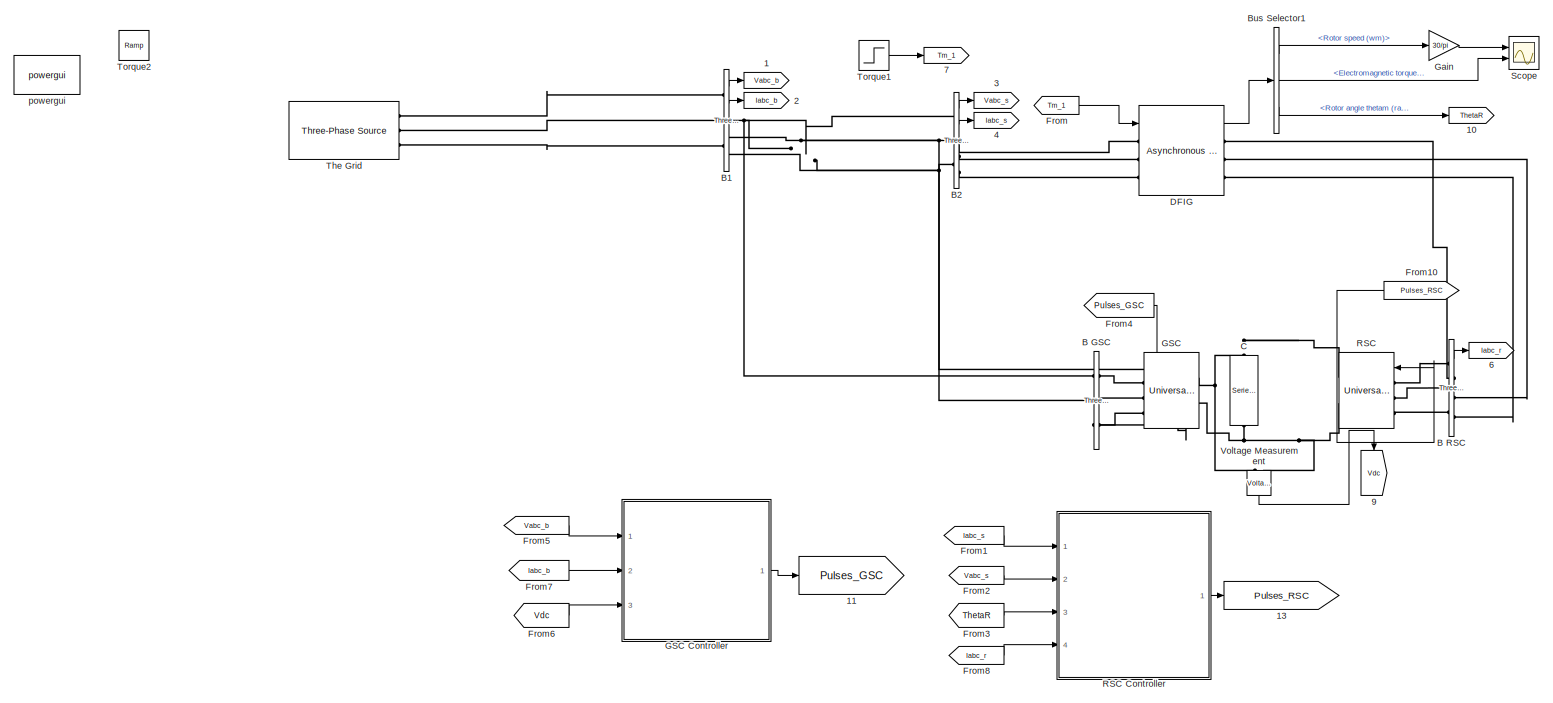
[diagram: root canvas - part 1/1, most of the canvas]
MODEL slx_e61ee6f3aca2
KIND model
BLOCK [Goto]  1
  GotoTag = Vabc_b
BLOCK [Goto]  10
  GotoTag = ThetaR
BLOCK [Goto]  11
  GotoTag = Pulses_GSC
BLOCK [Goto]  13
  GotoTag = Pulses_RSC
BLOCK [Goto]  2
  GotoTag = Iabc_b
BLOCK [Goto]  3
  GotoTag = Vabc_s
BLOCK [Goto]  4
  GotoTag = Iabc_s
BLOCK [Goto]  6
  GotoTag = Iabc_r
BLOCK [Goto]  7
  GotoTag = Tm_1
BLOCK [Goto]  9
  GotoTag = Vdc
BLOCK [Reference] B GSC  REF=powerlib/Measurements/Three-Phase
V-I Measurement
  CurrentMeasurement = no
  Ipu = off
  LabelI = Iabc
  LabelV = Vabc
  OutputType = Complex
  PSBequivalent = 0
  Pbase = 100e6
  PhasorSimulation = off
  Ports = [0, 0, 0, 0, 0, 3, 3]
  SetLabelI = off
  SetLabelV = off
  SourceBlock = powerlib/Measurements/Three-Phase\nV-I Measurement
  SourceType = Three-Phase VI Measurement
  Vbase = 500e3
  VoltageMeasurement = no
  Vpu = off
  VpuLL = off
BLOCK [Reference] B RSC  REF=powerlib/Measurements/Three-Phase
V-I Measurement
  CurrentMeasurement = yes
  Ipu = off
  LabelI = Iabc
  LabelV = Vabc
  OutputType = Complex
  PSBequivalent = 0
  Pbase = 100e6
  PhasorSimulation = off
  Ports = [0, 1, 0, 0, 0, 3, 3]
  SetLabelI = off
  SetLabelV = off
  SourceBlock = powerlib/Measurements/Three-Phase\nV-I Measurement
  SourceType = Three-Phase VI Measurement
  Vbase = 500e3
  VoltageMeasurement = no
  Vpu = off
  VpuLL = off
BLOCK [Reference] B1  REF=powerlib/Measurements/Three-Phase
V-I Measurement
  CurrentMeasurement = yes
  Ipu = off
  LabelI = Iabc
  LabelV = Vabc
  OutputType = Complex
  PSBequivalent = 0
  Pbase = 100e6
  PhasorSimulation = off
  Ports = [0, 2, 0, 0, 0, 3, 3]
  SetLabelI = off
  SetLabelV = off
  SourceBlock = powerlib/Measurements/Three-Phase\nV-I Measurement
  SourceType = Three-Phase VI Measurement
  Vbase = 500e3
  VoltageMeasurement = phase-to-ground
  Vpu = off
  VpuLL = off
BLOCK [Reference] B2  REF=powerlib/Measurements/Three-Phase
V-I Measurement
  CurrentMeasurement = yes
  Ipu = off
  LabelI = Iabc
  LabelV = Vabc
  OutputType = Complex
  PSBequivalent = 0
  Pbase = 100e6
  PhasorSimulation = off
  Ports = [0, 2, 0, 0, 0, 3, 3]
  SetLabelI = off
  SetLabelV = off
  SourceBlock = powerlib/Measurements/Three-Phase\nV-I Measurement
  SourceType = Three-Phase VI Measurement
  Vbase = 500e3
  VoltageMeasurement = phase-to-ground
  Vpu = off
  VpuLL = off
BLOCK [BusSelector] Bus Selector1
  OutputSignals = Mechanical.Rotor speed (wm),Mechanical.Electromagnetic torque Te (N*m),Mechanical.Rotor angle thetam (rad)
  Ports = [1, 3]
BLOCK [Reference] C  REF=powerlib/Elements/Series RLC Branch
  BranchType = C
  Capacitance = 0.0024
  Inductance = 1e-3
  InitialCurrent = 0
  InitialVoltage = 0
  LConnTagsString = __new0
  Measurements = None
  Ports = [0, 0, 0, 0, 0, 1, 1]
  RConnTagsString = __new0
  Resistance = 1
  SetiL0 = off
  Setx0 = off
  SourceBlock = powerlib/Elements/Series RLC Branch
  SourceType = Series RLC Branch
BLOCK [Reference] DFIG  REF=powerlib/Machines/Asynchronous Machine
SI Units
  AttributesFormatString = \n
  Cage1 = [ 0.022 0.226/377]
  Cage2 = [ 0.022 0.226/377]
  InitialConditions = [1 0 0 0 0 0 0 0]
  IterativeModel = Trapezoidal non iterative
  Lm = 0.02135
  LoadFlowParameters = 1492000
  MeasurementBus = off
  Mechanical = [0.03 0.02187 3]
  MechanicalLoad = Torque Tm
  NominalParameters = [7.5e3 415 50]
  Pmec = 0
  PolePairs = 2
  Ports = [1, 1, 0, 0, 0, 3, 3]
  PresetModel = No
  ReferenceFrame = Rotor
  Rotor = [0.80 0.0810]
  RotorType = Wound
  Saturation = [14.03593122, 27.81365428, 53.79336849, 72.68890987, 97.98006896, 148.6815601, 215.7428561, 302.9841135, 420.4778367 ; 230, 322, 414, 460, 506, 552, 598, 644, 690]
  ShowDetailedParameters = on
  SimulateSaturation = off
  SourceBlock = powerlib/Machines/Asynchronous Machine\nSI Units
  SourceType = Asynchronous Machine
  Stator = [1.06 0.2065]
  TsBlock = -1
  TsPowergui = 0
  Units = SI
BLOCK [From] From
  GotoTag = Tm_1
BLOCK [From] From1
  GotoTag = Iabc_s
BLOCK [From] From10
  GotoTag = Pulses_RSC
BLOCK [From] From2
  GotoTag = Vabc_s
BLOCK [From] From3
  GotoTag = ThetaR
BLOCK [From] From4
  GotoTag = Pulses_GSC
BLOCK [From] From5
  GotoTag = Vabc_b
BLOCK [From] From6
  GotoTag = Vdc
BLOCK [From] From7
  GotoTag = Iabc_b
BLOCK [From] From8
  GotoTag = Iabc_r
BLOCK [Reference] GSC  REF=powerlib/Power
Electronics/Universal Bridge
  Arms = 3
  Device = IGBT / Diodes
  ForwardVoltage = 0
  ForwardVoltages = [  0  0  ]
  GTOparameters = [ 10e-6 , 20e-6 ]
  IGBTparameters = [ 1e-6 , 2e-6 ]
  Lon = 0
  Measurements = None
  Measurements_2 = None
  Ports = [1, 0, 0, 0, 0, 3, 2]
  Ron = 1e-3
  SnubberCapacitance = inf
  SnubberResistance = 1e5
  SourceBlock = powerlib/Power\nElectronics/Universal Bridge
  SourceType = Universal Bridge
  converterType = Rectifier
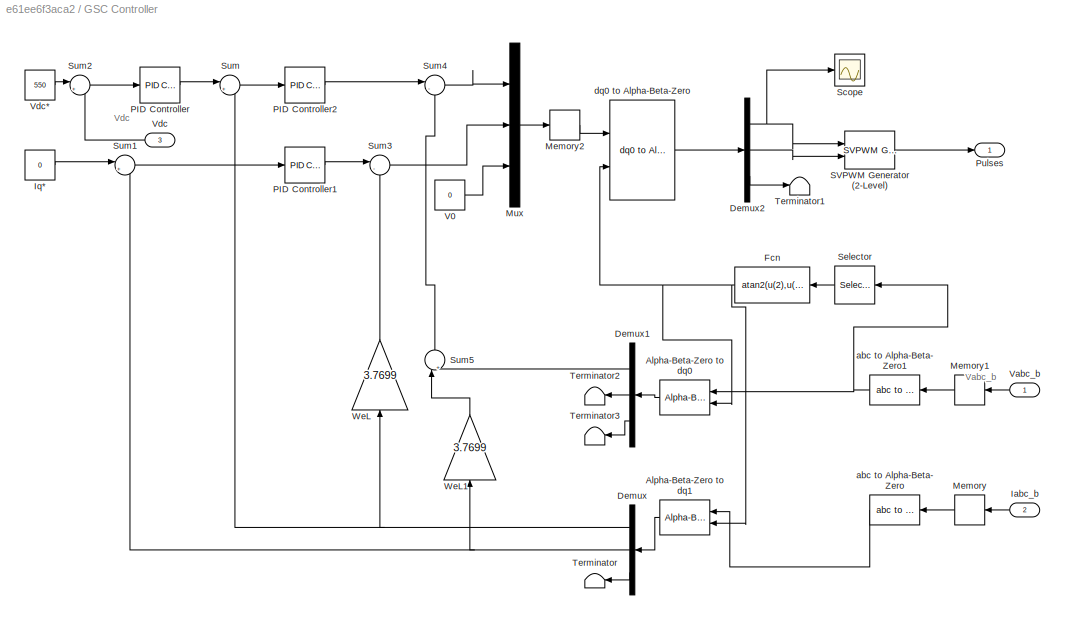
BLOCK [SubSystem] GSC Controller
  Ports = [3, 1]
  RequestExecContextInheritance = off
BLOCK [Reference] GSC Controller/Alpha-Beta-Zero to dq0  REF=powerlib_meascontrol/Transformations/Alpha-Beta-Zero
to dq0
  Alignment = Aligned with phase A axis
  Ports = [2, 1]
  SourceBlock = powerlib_meascontrol/Transformations/Alpha-Beta-Zero\nto dq0
  SourceType = Alpha-Beta-Zero to dq0 Transformation
BLOCK [Reference] GSC Controller/Alpha-Beta-Zero to dq1  REF=powerlib_meascontrol/Transformations/Alpha-Beta-Zero
to dq0
  Alignment = Aligned with phase A axis
  Ports = [2, 1]
  SourceBlock = powerlib_meascontrol/Transformations/Alpha-Beta-Zero\nto dq0
  SourceType = Alpha-Beta-Zero to dq0 Transformation
BLOCK [Demux] GSC Controller/Demux
  DisplayOption = bar
  Outputs = 3
  Ports = [1, 3]
BLOCK [Demux] GSC Controller/Demux1
  DisplayOption = bar
  Outputs = 3
  Ports = [1, 3]
BLOCK [Demux] GSC Controller/Demux2
  DisplayOption = bar
  Outputs = 3
  Ports = [1, 3]
BLOCK [Fcn] GSC Controller/Fcn
  Expr = atan2(u(2),u(1))
BLOCK [Inport] GSC Controller/Iabc_b
  IconDisplay = Port number
  Port = 2
BLOCK [Constant] GSC Controller/Iq*
  Value = 0
BLOCK [Memory] GSC Controller/Memory
  X0 = 1
BLOCK [Memory] GSC Controller/Memory1
  X0 = 100
BLOCK [Memory] GSC Controller/Memory2
  X0 = 1
BLOCK [Mux] GSC Controller/Mux
  DisplayOption = bar
  Inputs = 3
  Ports = [3, 1]
BLOCK [Reference] GSC Controller/PID Controller  REF=simulink/Continuous/PID Controller
  AntiWindupMode = none
  Controller = PI
  D = 0
  DOutDataTypeStr = Inherit: Inherit via internal rule
  DOutMax = []
  DOutMin = []
  DParamDataTypeStr = Inherit: Inherit via internal rule
  DParamMax = []
  DParamMin = []
  ExternalReset = none
  FilterContinuousStateAttributes = ''
  FilterMethod = Forward Euler
  FilterOutDataTypeStr = Inherit: Inherit via internal rule
  FilterOutMax = []
  FilterOutMin = []
  FilterRTWStateStorageClass = Auto
  FilterStateMustResolveToSignalObject = off
  Form = Parallel
  I = 1
  IOutDataTypeStr = Inherit: Inherit via internal rule
  IOutMax = []
  IOutMin = []
  IParamDataTypeStr = Inherit: Inherit via internal rule
  IParamMax = []
  IParamMin = []
  IgnoreLimit = off
  InitialConditionForFilter = 0
  InitialConditionForIntegrator = 0
  InitialConditionSource = internal
  IntegratorContinuousStateAttributes = ''
  IntegratorMethod = Forward Euler
  IntegratorOutDataTypeStr = Inherit: Inherit via internal rule
  IntegratorOutMax = []
  IntegratorOutMin = []
  IntegratorRTWStateStorageClass = Auto
  IntegratorStateMustResolveToSignalObject = off
  Kb = 1
  KbOutDataTypeStr = Inherit: Inherit via internal rule
  KbOutMax = []
  KbOutMin = []
  KbParamDataTypeStr = Inherit: Inherit via internal rule
  KbParamMax = []
  KbParamMin = []
  Kt = 1
  KtOutDataTypeStr = Inherit: Inherit via internal rule
  KtOutMax = []
  KtOutMin = []
  KtParamDataTypeStr = Inherit: Inherit via internal rule
  KtParamMax = []
  KtParamMin = []
  LimitOutput = off
  LinearizeAsGain = on
  LockScale = off
  LowerSaturationLimit = -1
  N = 100
  NOutDataTypeStr = Inherit: Inherit via internal rule
  NOutMax = []
  NOutMin = []
  NParamDataTypeStr = Inherit: Inherit via internal rule
  NParamMax = []
  NParamMin = []
  P = 10
  POutDataTypeStr = Inherit: Inherit via internal rule
  POutMax = []
  POutMin = []
  PParamDataTypeStr = Inherit: Inherit via internal rule
  PParamMax = []
  PParamMin = []
  Ports = [1, 1]
  RndMeth = Floor
  SampleTime = 1
  SaturateOnIntegerOverflow = off
  SaturationOutDataTypeStr = Inherit: Same as input
  SaturationOutMax = []
  SaturationOutMin = []
  SourceBlock = simulink/Continuous/PID Controller
  SourceType = PID 1dof
  SumAccumDataTypeStr = Inherit: Inherit via internal rule
  SumDAccumDataTypeStr = Inherit: Inherit via internal rule
  SumDOutDataTypeStr = Inherit: Inherit via internal rule
  SumDOutMax = []
  SumDOutMin = []
  SumI1AccumDataTypeStr = Inherit: Inherit via internal rule
  SumI1OutDataTypeStr = Inherit: Inherit via internal rule
  SumI1OutMax = []
  SumI1OutMin = []
  SumI2AccumDataTypeStr = Inherit: Inherit via internal rule
  SumI2OutDataTypeStr = Inherit: Inherit via internal rule
  SumI2OutMax = []
  SumI2OutMin = []
  SumI3AccumDataTypeStr = Inherit: Inherit via internal rule
  SumI3OutDataTypeStr = Inherit: Inherit via internal rule
  SumI3OutMax = []
  SumI3OutMin = []
  SumOutDataTypeStr = Inherit: Inherit via internal rule
  SumOutMax = []
  SumOutMin = []
  TimeDomain = Continuous-time
  TrackingMode = off
  UpperSaturationLimit = 1
  ZeroCross = on
BLOCK [Reference] GSC Controller/PID Controller1  REF=simulink/Continuous/PID Controller
  AntiWindupMode = none
  Controller = PI
  D = 0
  DOutDataTypeStr = Inherit: Inherit via internal rule
  DOutMax = []
  DOutMin = []
  DParamDataTypeStr = Inherit: Inherit via internal rule
  DParamMax = []
  DParamMin = []
  ExternalReset = none
  FilterContinuousStateAttributes = ''
  FilterMethod = Forward Euler
  FilterOutDataTypeStr = Inherit: Inherit via internal rule
  FilterOutMax = []
  FilterOutMin = []
  FilterRTWStateStorageClass = Auto
  FilterStateMustResolveToSignalObject = off
  Form = Parallel
  I = 1
  IOutDataTypeStr = Inherit: Inherit via internal rule
  IOutMax = []
  IOutMin = []
  IParamDataTypeStr = Inherit: Inherit via internal rule
  IParamMax = []
  IParamMin = []
  IgnoreLimit = off
  InitialConditionForFilter = 0
  InitialConditionForIntegrator = 0
  InitialConditionSource = internal
  IntegratorContinuousStateAttributes = ''
  IntegratorMethod = Forward Euler
  IntegratorOutDataTypeStr = Inherit: Inherit via internal rule
  IntegratorOutMax = []
  IntegratorOutMin = []
  IntegratorRTWStateStorageClass = Auto
  IntegratorStateMustResolveToSignalObject = off
  Kb = 1
  KbOutDataTypeStr = Inherit: Inherit via internal rule
  KbOutMax = []
  KbOutMin = []
  KbParamDataTypeStr = Inherit: Inherit via internal rule
  KbParamMax = []
  KbParamMin = []
  Kt = 1
  KtOutDataTypeStr = Inherit: Inherit via internal rule
  KtOutMax = []
  KtOutMin = []
  KtParamDataTypeStr = Inherit: Inherit via internal rule
  KtParamMax = []
  KtParamMin = []
  LimitOutput = off
  LinearizeAsGain = on
  LockScale = off
  LowerSaturationLimit = -1
  N = 100
  NOutDataTypeStr = Inherit: Inherit via internal rule
  NOutMax = []
  NOutMin = []
  NParamDataTypeStr = Inherit: Inherit via internal rule
  NParamMax = []
  NParamMin = []
  P = 20
  POutDataTypeStr = Inherit: Inherit via internal rule
  POutMax = []
  POutMin = []
  PParamDataTypeStr = Inherit: Inherit via internal rule
  PParamMax = []
  PParamMin = []
  Ports = [1, 1]
  RndMeth = Floor
  SampleTime = 1
  SaturateOnIntegerOverflow = off
  SaturationOutDataTypeStr = Inherit: Same as input
  SaturationOutMax = []
  SaturationOutMin = []
  SourceBlock = simulink/Continuous/PID Controller
  SourceType = PID 1dof
  SumAccumDataTypeStr = Inherit: Inherit via internal rule
  SumDAccumDataTypeStr = Inherit: Inherit via internal rule
  SumDOutDataTypeStr = Inherit: Inherit via internal rule
  SumDOutMax = []
  SumDOutMin = []
  SumI1AccumDataTypeStr = Inherit: Inherit via internal rule
  SumI1OutDataTypeStr = Inherit: Inherit via internal rule
  SumI1OutMax = []
  SumI1OutMin = []
  SumI2AccumDataTypeStr = Inherit: Inherit via internal rule
  SumI2OutDataTypeStr = Inherit: Inherit via internal rule
  SumI2OutMax = []
  SumI2OutMin = []
  SumI3AccumDataTypeStr = Inherit: Inherit via internal rule
  SumI3OutDataTypeStr = Inherit: Inherit via internal rule
  SumI3OutMax = []
  SumI3OutMin = []
  SumOutDataTypeStr = Inherit: Inherit via internal rule
  SumOutMax = []
  SumOutMin = []
  TimeDomain = Continuous-time
  TrackingMode = off
  UpperSaturationLimit = 1
  ZeroCross = on
BLOCK [Reference] GSC Controller/PID Controller2  REF=simulink/Continuous/PID Controller
  AntiWindupMode = none
  Controller = PI
  D = 0
  DOutDataTypeStr = Inherit: Inherit via internal rule
  DOutMax = []
  DOutMin = []
  DParamDataTypeStr = Inherit: Inherit via internal rule
  DParamMax = []
  DParamMin = []
  ExternalReset = none
  FilterContinuousStateAttributes = ''
  FilterMethod = Forward Euler
  FilterOutDataTypeStr = Inherit: Inherit via internal rule
  FilterOutMax = []
  FilterOutMin = []
  FilterRTWStateStorageClass = Auto
  FilterStateMustResolveToSignalObject = off
  Form = Parallel
  I = 1
  IOutDataTypeStr = Inherit: Inherit via internal rule
  IOutMax = []
  IOutMin = []
  IParamDataTypeStr = Inherit: Inherit via internal rule
  IParamMax = []
  IParamMin = []
  IgnoreLimit = off
  InitialConditionForFilter = 0
  InitialConditionForIntegrator = 0
  InitialConditionSource = internal
  IntegratorContinuousStateAttributes = ''
  IntegratorMethod = Forward Euler
  IntegratorOutDataTypeStr = Inherit: Inherit via internal rule
  IntegratorOutMax = []
  IntegratorOutMin = []
  IntegratorRTWStateStorageClass = Auto
  IntegratorStateMustResolveToSignalObject = off
  Kb = 1
  KbOutDataTypeStr = Inherit: Inherit via internal rule
  KbOutMax = []
  KbOutMin = []
  KbParamDataTypeStr = Inherit: Inherit via internal rule
  KbParamMax = []
  KbParamMin = []
  Kt = 1
  KtOutDataTypeStr = Inherit: Inherit via internal rule
  KtOutMax = []
  KtOutMin = []
  KtParamDataTypeStr = Inherit: Inherit via internal rule
  KtParamMax = []
  KtParamMin = []
  LimitOutput = off
  LinearizeAsGain = on
  LockScale = off
  LowerSaturationLimit = -1
  N = 100
  NOutDataTypeStr = Inherit: Inherit via internal rule
  NOutMax = []
  NOutMin = []
  NParamDataTypeStr = Inherit: Inherit via internal rule
  NParamMax = []
  NParamMin = []
  P = 20
  POutDataTypeStr = Inherit: Inherit via internal rule
  POutMax = []
  POutMin = []
  PParamDataTypeStr = Inherit: Inherit via internal rule
  PParamMax = []
  PParamMin = []
  Ports = [1, 1]
  RndMeth = Floor
  SampleTime = 1
  SaturateOnIntegerOverflow = off
  SaturationOutDataTypeStr = Inherit: Same as input
  SaturationOutMax = []
  SaturationOutMin = []
  SourceBlock = simulink/Continuous/PID Controller
  SourceType = PID 1dof
  SumAccumDataTypeStr = Inherit: Inherit via internal rule
  SumDAccumDataTypeStr = Inherit: Inherit via internal rule
  SumDOutDataTypeStr = Inherit: Inherit via internal rule
  SumDOutMax = []
  SumDOutMin = []
  SumI1AccumDataTypeStr = Inherit: Inherit via internal rule
  SumI1OutDataTypeStr = Inherit: Inherit via internal rule
  SumI1OutMax = []
  SumI1OutMin = []
  SumI2AccumDataTypeStr = Inherit: Inherit via internal rule
  SumI2OutDataTypeStr = Inherit: Inherit via internal rule
  SumI2OutMax = []
  SumI2OutMin = []
  SumI3AccumDataTypeStr = Inherit: Inherit via internal rule
  SumI3OutDataTypeStr = Inherit: Inherit via internal rule
  SumI3OutMax = []
  SumI3OutMin = []
  SumOutDataTypeStr = Inherit: Inherit via internal rule
  SumOutMax = []
  SumOutMin = []
  TimeDomain = Continuous-time
  TrackingMode = off
  UpperSaturationLimit = 1
  ZeroCross = on
BLOCK [Outport] GSC Controller/Pulses
  IconDisplay = Port number
BLOCK [Reference] GSC Controller/SVPWM Generator (2-Level)  REF=powerlib_meascontrol/Pulse & Signal
Generators/SVPWM Generator
(2-Level)
  Fc = 27*50
  InputType = alpha-beta components
  ParUref = [0.8 -30 50]
  Ports = [2, 1]
  SourceBlock = powerlib_meascontrol/Pulse & Signal\nGenerators/SVPWM Generator\n(2-Level)
  SourceType = SVPWM Generator (2-Level)
  SwitchingPattern = Pattern #1
  Ts = 0
BLOCK [Scope] GSC Controller/Scope
  DataFormat = StructureWithTime
  Floating = off
  NumInputPorts = 1
  Ports = [1]
  SampleTime = 0
  ShowLegends = off
BLOCK [Selector] GSC Controller/Selector
  Indices = [1 2]
  InputPortWidth = 3
  Ports = [1, 1]
BLOCK [Sum] GSC Controller/Sum
  IconShape = round
  InputSameDT = off
  Inputs = |+-
  OutDataTypeStr = Inherit: Inherit via internal rule
  Ports = [2, 1]
  SaturateOnIntegerOverflow = off
BLOCK [Sum] GSC Controller/Sum1
  IconShape = round
  InputSameDT = off
  Inputs = |+-
  OutDataTypeStr = Inherit: Inherit via internal rule
  Ports = [2, 1]
  SaturateOnIntegerOverflow = off
BLOCK [Sum] GSC Controller/Sum2
  IconShape = round
  InputSameDT = off
  Inputs = |+-
  OutDataTypeStr = Inherit: Inherit via internal rule
  Ports = [2, 1]
  SaturateOnIntegerOverflow = off
BLOCK [Sum] GSC Controller/Sum3
  IconShape = round
  InputSameDT = off
  Inputs = |--
  OutDataTypeStr = Inherit: Inherit via internal rule
  Ports = [2, 1]
  SaturateOnIntegerOverflow = off
BLOCK [Sum] GSC Controller/Sum4
  IconShape = round
  InputSameDT = off
  Inputs = |-+
  OutDataTypeStr = Inherit: Inherit via internal rule
  Ports = [2, 1]
  SaturateOnIntegerOverflow = off
BLOCK [Sum] GSC Controller/Sum5
  IconShape = round
  InputSameDT = off
  Inputs = |++
  OutDataTypeStr = Inherit: Inherit via internal rule
  Ports = [2, 1]
  SaturateOnIntegerOverflow = off
BLOCK [Terminator] GSC Controller/Terminator
BLOCK [Terminator] GSC Controller/Terminator1
BLOCK [Terminator] GSC Controller/Terminator2
BLOCK [Terminator] GSC Controller/Terminator3
BLOCK [Constant] GSC Controller/V0
  Value = 0
BLOCK [Inport] GSC Controller/Vabc_b
  IconDisplay = Port number
BLOCK [Inport] GSC Controller/Vdc
  IconDisplay = Port number
  Port = 3
BLOCK [Constant] GSC Controller/Vdc*
  Value = 550
BLOCK [Gain] GSC Controller/WeL
  Gain = 3.7699
  OutDataTypeStr = Inherit: Inherit via internal rule
  ParamDataTypeStr = Inherit: Inherit via internal rule
  SaturateOnIntegerOverflow = off
BLOCK [Gain] GSC Controller/WeL1
  Gain = 3.7699
  OutDataTypeStr = Inherit: Inherit via internal rule
  ParamDataTypeStr = Inherit: Inherit via internal rule
  SaturateOnIntegerOverflow = off
BLOCK [Reference] GSC Controller/abc to Alpha-Beta-Zero  REF=powerlib_meascontrol/Transformations/abc to
Alpha-Beta-Zero
  Ports = [1, 1]
  SourceBlock = powerlib_meascontrol/Transformations/abc to\nAlpha-Beta-Zero
  SourceType = abc to Alpha-Beta-Zero Transformation
BLOCK [Reference] GSC Controller/abc to Alpha-Beta-Zero1  REF=powerlib_meascontrol/Transformations/abc to
Alpha-Beta-Zero
  Ports = [1, 1]
  SourceBlock = powerlib_meascontrol/Transformations/abc to\nAlpha-Beta-Zero
  SourceType = abc to Alpha-Beta-Zero Transformation
BLOCK [Reference] GSC Controller/dq0 to Alpha-Beta-Zero  REF=powerlib_meascontrol/Transformations/dq0 to
Alpha-Beta-Zero
  Alignment = 90 degrees behind phase A axis
  Ports = [2, 1]
  SourceBlock = powerlib_meascontrol/Transformations/dq0 to\nAlpha-Beta-Zero
  SourceType = dq0 to Alpha-Beta-Zero Transformation
BLOCK [Gain] Gain
  Gain = 30/pi
  OutDataTypeStr = Inherit: Inherit via internal rule
  ParamDataTypeStr = Inherit: Inherit via internal rule
  SaturateOnIntegerOverflow = off
BLOCK [Reference] RSC  REF=powerlib/Power
Electronics/Universal Bridge
  Arms = 3
  Device = IGBT / Diodes
  ForwardVoltage = 0
  ForwardVoltages = [  0  0  ]
  GTOparameters = [ 10e-6 , 20e-6 ]
  IGBTparameters = [ 1e-6 , 2e-6 ]
  Lon = 0
  Measurements = None
  Measurements_2 = None
  Ports = [1, 0, 0, 0, 0, 3, 2]
  Ron = 1e-3
  SnubberCapacitance = inf
  SnubberResistance = 1e5
  SourceBlock = powerlib/Power\nElectronics/Universal Bridge
  SourceType = Universal Bridge
  converterType = Rectifier
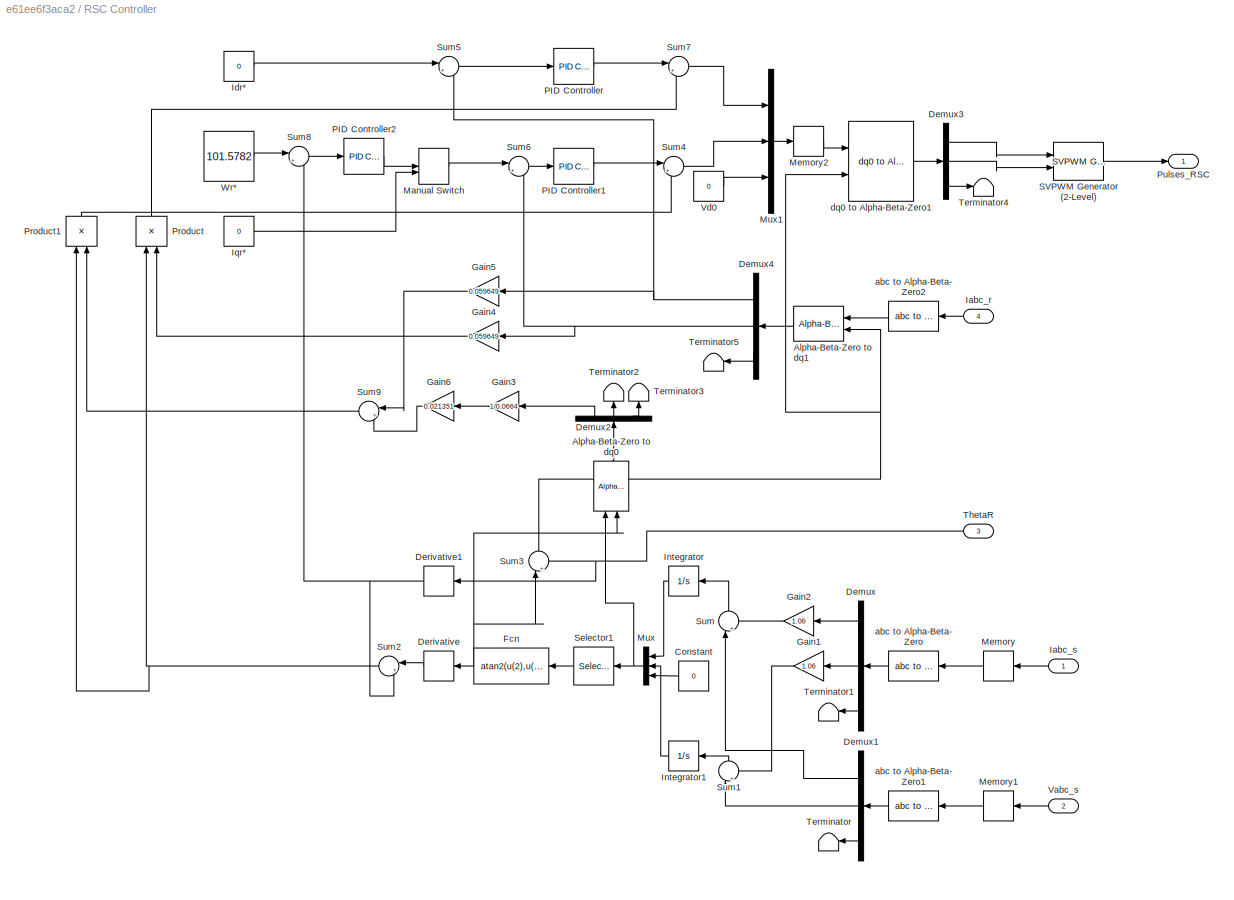
BLOCK [SubSystem] RSC Controller
  Ports = [4, 1]
  RequestExecContextInheritance = off
BLOCK [Reference] RSC Controller/Alpha-Beta-Zero to dq0  REF=powerlib_meascontrol/Transformations/Alpha-Beta-Zero
to dq0
  Alignment = 90 degrees behind phase A axis
  Ports = [2, 1]
  SourceBlock = powerlib_meascontrol/Transformations/Alpha-Beta-Zero\nto dq0
  SourceType = Alpha-Beta-Zero to dq0 Transformation
BLOCK [Reference] RSC Controller/Alpha-Beta-Zero to dq1  REF=powerlib_meascontrol/Transformations/Alpha-Beta-Zero
to dq0
  Alignment = 90 degrees behind phase A axis
  Ports = [2, 1]
  SourceBlock = powerlib_meascontrol/Transformations/Alpha-Beta-Zero\nto dq0
  SourceType = Alpha-Beta-Zero to dq0 Transformation
BLOCK [Constant] RSC Controller/Constant
  Value = 0
BLOCK [Demux] RSC Controller/Demux
  DisplayOption = bar
  Outputs = 3
  Ports = [1, 3]
BLOCK [Demux] RSC Controller/Demux1
  DisplayOption = bar
  Outputs = 3
  Ports = [1, 3]
BLOCK [Demux] RSC Controller/Demux2
  DisplayOption = bar
  Outputs = 3
  Ports = [1, 3]
BLOCK [Demux] RSC Controller/Demux3
  DisplayOption = bar
  Outputs = 3
  Ports = [1, 3]
BLOCK [Demux] RSC Controller/Demux4
  DisplayOption = bar
  Outputs = 3
  Ports = [1, 3]
BLOCK [Derivative] RSC Controller/Derivative
BLOCK [Derivative] RSC Controller/Derivative1
BLOCK [Fcn] RSC Controller/Fcn
  Expr = atan2(u(2),u(1))
BLOCK [Gain] RSC Controller/Gain1
  Gain = 1.06
  OutDataTypeStr = Inherit: Inherit via internal rule
  ParamDataTypeStr = Inherit: Inherit via internal rule
  SaturateOnIntegerOverflow = off
BLOCK [Gain] RSC Controller/Gain2
  Gain = 1.06
  OutDataTypeStr = Inherit: Inherit via internal rule
  ParamDataTypeStr = Inherit: Inherit via internal rule
  SaturateOnIntegerOverflow = off
BLOCK [Gain] RSC Controller/Gain3
  Gain = 1/0.0664
  OutDataTypeStr = Inherit: Inherit via internal rule
  ParamDataTypeStr = Inherit: Inherit via internal rule
  SaturateOnIntegerOverflow = off
BLOCK [Gain] RSC Controller/Gain4
  Gain = 0.059649
  OutDataTypeStr = Inherit: Inherit via internal rule
  ParamDataTypeStr = Inherit: Inherit via internal rule
  SaturateOnIntegerOverflow = off
BLOCK [Gain] RSC Controller/Gain5
  Gain = 0.059649
  OutDataTypeStr = Inherit: Inherit via internal rule
  ParamDataTypeStr = Inherit: Inherit via internal rule
  SaturateOnIntegerOverflow = off
BLOCK [Gain] RSC Controller/Gain6
  Gain = 0.021351
  OutDataTypeStr = Inherit: Inherit via internal rule
  ParamDataTypeStr = Inherit: Inherit via internal rule
  SaturateOnIntegerOverflow = off
BLOCK [Inport] RSC Controller/Iabc_r
  IconDisplay = Port number
  Port = 4
BLOCK [Inport] RSC Controller/Iabc_s
  IconDisplay = Port number
BLOCK [Constant] RSC Controller/Idr*
  Value = 0
BLOCK [Integrator] RSC Controller/Integrator
  Ports = [1, 1]
BLOCK [Integrator] RSC Controller/Integrator1
  Ports = [1, 1]
BLOCK [Constant] RSC Controller/Iqr*
  Value = 0
BLOCK [ManualSwitch] RSC Controller/Manual Switch
BLOCK [Memory] RSC Controller/Memory
  X0 = 1
BLOCK [Memory] RSC Controller/Memory1
  X0 = 100
BLOCK [Memory] RSC Controller/Memory2
  X0 = 1
BLOCK [Mux] RSC Controller/Mux
  DisplayOption = bar
  Inputs = 3
  Ports = [3, 1]
BLOCK [Mux] RSC Controller/Mux1
  DisplayOption = bar
  Inputs = 3
  Ports = [3, 1]
BLOCK [Reference] RSC Controller/PID Controller  REF=simulink/Continuous/PID Controller
  AntiWindupMode = none
  Controller = PI
  D = 0
  DOutDataTypeStr = Inherit: Inherit via internal rule
  DOutMax = []
  DOutMin = []
  DParamDataTypeStr = Inherit: Inherit via internal rule
  DParamMax = []
  DParamMin = []
  ExternalReset = none
  FilterContinuousStateAttributes = ''
  FilterMethod = Forward Euler
  FilterOutDataTypeStr = Inherit: Inherit via internal rule
  FilterOutMax = []
  FilterOutMin = []
  FilterRTWStateStorageClass = Auto
  FilterStateMustResolveToSignalObject = off
  Form = Parallel
  I = 1
  IOutDataTypeStr = Inherit: Inherit via internal rule
  IOutMax = []
  IOutMin = []
  IParamDataTypeStr = Inherit: Inherit via internal rule
  IParamMax = []
  IParamMin = []
  IgnoreLimit = off
  InitialConditionForFilter = 0
  InitialConditionForIntegrator = 0
  InitialConditionSource = internal
  IntegratorContinuousStateAttributes = ''
  IntegratorMethod = Forward Euler
  IntegratorOutDataTypeStr = Inherit: Inherit via internal rule
  IntegratorOutMax = []
  IntegratorOutMin = []
  IntegratorRTWStateStorageClass = Auto
  IntegratorStateMustResolveToSignalObject = off
  Kb = 1
  KbOutDataTypeStr = Inherit: Inherit via internal rule
  KbOutMax = []
  KbOutMin = []
  KbParamDataTypeStr = Inherit: Inherit via internal rule
  KbParamMax = []
  KbParamMin = []
  Kt = 1
  KtOutDataTypeStr = Inherit: Inherit via internal rule
  KtOutMax = []
  KtOutMin = []
  KtParamDataTypeStr = Inherit: Inherit via internal rule
  KtParamMax = []
  KtParamMin = []
  LimitOutput = off
  LinearizeAsGain = on
  LockScale = off
  LowerSaturationLimit = -inf
  N = 100
  NOutDataTypeStr = Inherit: Inherit via internal rule
  NOutMax = []
  NOutMin = []
  NParamDataTypeStr = Inherit: Inherit via internal rule
  NParamMax = []
  NParamMin = []
  P = 20
  POutDataTypeStr = Inherit: Inherit via internal rule
  POutMax = []
  POutMin = []
  PParamDataTypeStr = Inherit: Inherit via internal rule
  PParamMax = []
  PParamMin = []
  Ports = [1, 1]
  RndMeth = Floor
  SampleTime = 1
  SaturateOnIntegerOverflow = off
  SaturationOutDataTypeStr = Inherit: Same as input
  SaturationOutMax = []
  SaturationOutMin = []
  SourceBlock = simulink/Continuous/PID Controller
  SourceType = PID 1dof
  SumAccumDataTypeStr = Inherit: Inherit via internal rule
  SumDAccumDataTypeStr = Inherit: Inherit via internal rule
  SumDOutDataTypeStr = Inherit: Inherit via internal rule
  SumDOutMax = []
  SumDOutMin = []
  SumI1AccumDataTypeStr = Inherit: Inherit via internal rule
  SumI1OutDataTypeStr = Inherit: Inherit via internal rule
  SumI1OutMax = []
  SumI1OutMin = []
  SumI2AccumDataTypeStr = Inherit: Inherit via internal rule
  SumI2OutDataTypeStr = Inherit: Inherit via internal rule
  SumI2OutMax = []
  SumI2OutMin = []
  SumI3AccumDataTypeStr = Inherit: Inherit via internal rule
  SumI3OutDataTypeStr = Inherit: Inherit via internal rule
  SumI3OutMax = []
  SumI3OutMin = []
  SumOutDataTypeStr = Inherit: Inherit via internal rule
  SumOutMax = []
  SumOutMin = []
  TimeDomain = Continuous-time
  TrackingMode = off
  UpperSaturationLimit = inf
  ZeroCross = on
BLOCK [Reference] RSC Controller/PID Controller1  REF=simulink/Continuous/PID Controller
  AntiWindupMode = none
  Controller = PI
  D = 0
  DOutDataTypeStr = Inherit: Inherit via internal rule
  DOutMax = []
  DOutMin = []
  DParamDataTypeStr = Inherit: Inherit via internal rule
  DParamMax = []
  DParamMin = []
  ExternalReset = none
  FilterContinuousStateAttributes = ''
  FilterMethod = Forward Euler
  FilterOutDataTypeStr = Inherit: Inherit via internal rule
  FilterOutMax = []
  FilterOutMin = []
  FilterRTWStateStorageClass = Auto
  FilterStateMustResolveToSignalObject = off
  Form = Parallel
  I = 1
  IOutDataTypeStr = Inherit: Inherit via internal rule
  IOutMax = []
  IOutMin = []
  IParamDataTypeStr = Inherit: Inherit via internal rule
  IParamMax = []
  IParamMin = []
  IgnoreLimit = off
  InitialConditionForFilter = 0
  InitialConditionForIntegrator = 0
  InitialConditionSource = internal
  IntegratorContinuousStateAttributes = ''
  IntegratorMethod = Forward Euler
  IntegratorOutDataTypeStr = Inherit: Inherit via internal rule
  IntegratorOutMax = []
  IntegratorOutMin = []
  IntegratorRTWStateStorageClass = Auto
  IntegratorStateMustResolveToSignalObject = off
  Kb = 1
  KbOutDataTypeStr = Inherit: Inherit via internal rule
  KbOutMax = []
  KbOutMin = []
  KbParamDataTypeStr = Inherit: Inherit via internal rule
  KbParamMax = []
  KbParamMin = []
  Kt = 1
  KtOutDataTypeStr = Inherit: Inherit via internal rule
  KtOutMax = []
  KtOutMin = []
  KtParamDataTypeStr = Inherit: Inherit via internal rule
  KtParamMax = []
  KtParamMin = []
  LimitOutput = off
  LinearizeAsGain = on
  LockScale = off
  LowerSaturationLimit = -inf
  N = 100
  NOutDataTypeStr = Inherit: Inherit via internal rule
  NOutMax = []
  NOutMin = []
  NParamDataTypeStr = Inherit: Inherit via internal rule
  NParamMax = []
  NParamMin = []
  P = 20
  POutDataTypeStr = Inherit: Inherit via internal rule
  POutMax = []
  POutMin = []
  PParamDataTypeStr = Inherit: Inherit via internal rule
  PParamMax = []
  PParamMin = []
  Ports = [1, 1]
  RndMeth = Floor
  SampleTime = 1
  SaturateOnIntegerOverflow = off
  SaturationOutDataTypeStr = Inherit: Same as input
  SaturationOutMax = []
  SaturationOutMin = []
  SourceBlock = simulink/Continuous/PID Controller
  SourceType = PID 1dof
  SumAccumDataTypeStr = Inherit: Inherit via internal rule
  SumDAccumDataTypeStr = Inherit: Inherit via internal rule
  SumDOutDataTypeStr = Inherit: Inherit via internal rule
  SumDOutMax = []
  SumDOutMin = []
  SumI1AccumDataTypeStr = Inherit: Inherit via internal rule
  SumI1OutDataTypeStr = Inherit: Inherit via internal rule
  SumI1OutMax = []
  SumI1OutMin = []
  SumI2AccumDataTypeStr = Inherit: Inherit via internal rule
  SumI2OutDataTypeStr = Inherit: Inherit via internal rule
  SumI2OutMax = []
  SumI2OutMin = []
  SumI3AccumDataTypeStr = Inherit: Inherit via internal rule
  SumI3OutDataTypeStr = Inherit: Inherit via internal rule
  SumI3OutMax = []
  SumI3OutMin = []
  SumOutDataTypeStr = Inherit: Inherit via internal rule
  SumOutMax = []
  SumOutMin = []
  TimeDomain = Continuous-time
  TrackingMode = off
  UpperSaturationLimit = inf
  ZeroCross = on
BLOCK [Reference] RSC Controller/PID Controller2  REF=simulink/Continuous/PID Controller
  AntiWindupMode = none
  Controller = PI
  D = 0
  DOutDataTypeStr = Inherit: Inherit via internal rule
  DOutMax = []
  DOutMin = []
  DParamDataTypeStr = Inherit: Inherit via internal rule
  DParamMax = []
  DParamMin = []
  ExternalReset = none
  FilterContinuousStateAttributes = ''
  FilterMethod = Forward Euler
  FilterOutDataTypeStr = Inherit: Inherit via internal rule
  FilterOutMax = []
  FilterOutMin = []
  FilterRTWStateStorageClass = Auto
  FilterStateMustResolveToSignalObject = off
  Form = Parallel
  I = 1
  IOutDataTypeStr = Inherit: Inherit via internal rule
  IOutMax = []
  IOutMin = []
  IParamDataTypeStr = Inherit: Inherit via internal rule
  IParamMax = []
  IParamMin = []
  IgnoreLimit = off
  InitialConditionForFilter = 0
  InitialConditionForIntegrator = 0
  InitialConditionSource = internal
  IntegratorContinuousStateAttributes = ''
  IntegratorMethod = Forward Euler
  IntegratorOutDataTypeStr = Inherit: Inherit via internal rule
  IntegratorOutMax = []
  IntegratorOutMin = []
  IntegratorRTWStateStorageClass = Auto
  IntegratorStateMustResolveToSignalObject = off
  Kb = 1
  KbOutDataTypeStr = Inherit: Inherit via internal rule
  KbOutMax = []
  KbOutMin = []
  KbParamDataTypeStr = Inherit: Inherit via internal rule
  KbParamMax = []
  KbParamMin = []
  Kt = 1
  KtOutDataTypeStr = Inherit: Inherit via internal rule
  KtOutMax = []
  KtOutMin = []
  KtParamDataTypeStr = Inherit: Inherit via internal rule
  KtParamMax = []
  KtParamMin = []
  LimitOutput = off
  LinearizeAsGain = on
  LockScale = off
  LowerSaturationLimit = -inf
  N = 100
  NOutDataTypeStr = Inherit: Inherit via internal rule
  NOutMax = []
  NOutMin = []
  NParamDataTypeStr = Inherit: Inherit via internal rule
  NParamMax = []
  NParamMin = []
  P = 10
  POutDataTypeStr = Inherit: Inherit via internal rule
  POutMax = []
  POutMin = []
  PParamDataTypeStr = Inherit: Inherit via internal rule
  PParamMax = []
  PParamMin = []
  Ports = [1, 1]
  RndMeth = Floor
  SampleTime = 1
  SaturateOnIntegerOverflow = off
  SaturationOutDataTypeStr = Inherit: Same as input
  SaturationOutMax = []
  SaturationOutMin = []
  SourceBlock = simulink/Continuous/PID Controller
  SourceType = PID 1dof
  SumAccumDataTypeStr = Inherit: Inherit via internal rule
  SumDAccumDataTypeStr = Inherit: Inherit via internal rule
  SumDOutDataTypeStr = Inherit: Inherit via internal rule
  SumDOutMax = []
  SumDOutMin = []
  SumI1AccumDataTypeStr = Inherit: Inherit via internal rule
  SumI1OutDataTypeStr = Inherit: Inherit via internal rule
  SumI1OutMax = []
  SumI1OutMin = []
  SumI2AccumDataTypeStr = Inherit: Inherit via internal rule
  SumI2OutDataTypeStr = Inherit: Inherit via internal rule
  SumI2OutMax = []
  SumI2OutMin = []
  SumI3AccumDataTypeStr = Inherit: Inherit via internal rule
  SumI3OutDataTypeStr = Inherit: Inherit via internal rule
  SumI3OutMax = []
  SumI3OutMin = []
  SumOutDataTypeStr = Inherit: Inherit via internal rule
  SumOutMax = []
  SumOutMin = []
  TimeDomain = Continuous-time
  TrackingMode = off
  UpperSaturationLimit = inf
  ZeroCross = on
BLOCK [Product] RSC Controller/Product
  InputSameDT = off
  OutDataTypeStr = Inherit: Inherit via internal rule
  Ports = [2, 1]
  RndMeth = Floor
  SaturateOnIntegerOverflow = off
BLOCK [Product] RSC Controller/Product1
  InputSameDT = off
  OutDataTypeStr = Inherit: Inherit via internal rule
  Ports = [2, 1]
  RndMeth = Floor
  SaturateOnIntegerOverflow = off
BLOCK [Outport] RSC Controller/Pulses_RSC
  IconDisplay = Port number
BLOCK [Reference] RSC Controller/SVPWM Generator (2-Level)  REF=powerlib_meascontrol/Pulse & Signal
Generators/SVPWM Generator
(2-Level)
  Fc = 27*50
  InputType = alpha-beta components
  ParUref = [0.8 -30 50]
  Ports = [2, 1]
  SourceBlock = powerlib_meascontrol/Pulse & Signal\nGenerators/SVPWM Generator\n(2-Level)
  SourceType = SVPWM Generator (2-Level)
  SwitchingPattern = Pattern #1
  Ts = 0
BLOCK [Selector] RSC Controller/Selector1
  Indices = [1 2]
  InputPortWidth = 3
  Ports = [1, 1]
BLOCK [Sum] RSC Controller/Sum
  IconShape = round
  InputSameDT = off
  Inputs = |+-
  OutDataTypeStr = Inherit: Inherit via internal rule
  Ports = [2, 1]
  SaturateOnIntegerOverflow = off
BLOCK [Sum] RSC Controller/Sum1
  IconShape = round
  InputSameDT = off
  Inputs = |+-
  OutDataTypeStr = Inherit: Inherit via internal rule
  Ports = [2, 1]
  SaturateOnIntegerOverflow = off
BLOCK [Sum] RSC Controller/Sum2
  IconShape = round
  InputSameDT = off
  Inputs = |+-
  OutDataTypeStr = Inherit: Inherit via internal rule
  Ports = [2, 1]
  SaturateOnIntegerOverflow = off
BLOCK [Sum] RSC Controller/Sum3
  IconShape = round
  InputSameDT = off
  Inputs = |+-
  OutDataTypeStr = Inherit: Inherit via internal rule
  Ports = [2, 1]
  SaturateOnIntegerOverflow = off
BLOCK [Sum] RSC Controller/Sum4
  IconShape = round
  InputSameDT = off
  Inputs = |++
  OutDataTypeStr = Inherit: Inherit via internal rule
  Ports = [2, 1]
  SaturateOnIntegerOverflow = off
BLOCK [Sum] RSC Controller/Sum5
  IconShape = round
  InputSameDT = off
  Inputs = |+-
  OutDataTypeStr = Inherit: Inherit via internal rule
  Ports = [2, 1]
  SaturateOnIntegerOverflow = off
BLOCK [Sum] RSC Controller/Sum6
  IconShape = round
  InputSameDT = off
  Inputs = |+-
  OutDataTypeStr = Inherit: Inherit via internal rule
  Ports = [2, 1]
  SaturateOnIntegerOverflow = off
BLOCK [Sum] RSC Controller/Sum7
  IconShape = round
  InputSameDT = off
  Inputs = |+-
  OutDataTypeStr = Inherit: Inherit via internal rule
  Ports = [2, 1]
  SaturateOnIntegerOverflow = off
BLOCK [Sum] RSC Controller/Sum8
  IconShape = round
  InputSameDT = off
  Inputs = |+-
  OutDataTypeStr = Inherit: Inherit via internal rule
  Ports = [2, 1]
  SaturateOnIntegerOverflow = off
BLOCK [Sum] RSC Controller/Sum9
  IconShape = round
  InputSameDT = off
  Inputs = |++
  OutDataTypeStr = Inherit: Inherit via internal rule
  Ports = [2, 1]
  SaturateOnIntegerOverflow = off
BLOCK [Terminator] RSC Controller/Terminator
BLOCK [Terminator] RSC Controller/Terminator1
BLOCK [Terminator] RSC Controller/Terminator2
BLOCK [Terminator] RSC Controller/Terminator3
BLOCK [Terminator] RSC Controller/Terminator4
BLOCK [Terminator] RSC Controller/Terminator5
BLOCK [Inport] RSC Controller/ThetaR
  IconDisplay = Port number
  Port = 3
BLOCK [Inport] RSC Controller/Vabc_s
  IconDisplay = Port number
  Port = 2
BLOCK [Constant] RSC Controller/Vd0
  Value = 0
BLOCK [Constant] RSC Controller/Wr*
  Value = 101.5782
BLOCK [Reference] RSC Controller/abc to Alpha-Beta-Zero  REF=powerlib_meascontrol/Transformations/abc to
Alpha-Beta-Zero
  Ports = [1, 1]
  SourceBlock = powerlib_meascontrol/Transformations/abc to\nAlpha-Beta-Zero
  SourceType = abc to Alpha-Beta-Zero Transformation
BLOCK [Reference] RSC Controller/abc to Alpha-Beta-Zero1  REF=powerlib_meascontrol/Transformations/abc to
Alpha-Beta-Zero
  Ports = [1, 1]
  SourceBlock = powerlib_meascontrol/Transformations/abc to\nAlpha-Beta-Zero
  SourceType = abc to Alpha-Beta-Zero Transformation
BLOCK [Reference] RSC Controller/abc to Alpha-Beta-Zero2  REF=powerlib_meascontrol/Transformations/abc to
Alpha-Beta-Zero
  Ports = [1, 1]
  SourceBlock = powerlib_meascontrol/Transformations/abc to\nAlpha-Beta-Zero
  SourceType = abc to Alpha-Beta-Zero Transformation
BLOCK [Reference] RSC Controller/dq0 to Alpha-Beta-Zero1  REF=powerlib_meascontrol/Transformations/dq0 to
Alpha-Beta-Zero
  Alignment = 90 degrees behind phase A axis
  Ports = [2, 1]
  SourceBlock = powerlib_meascontrol/Transformations/dq0 to\nAlpha-Beta-Zero
  SourceType = dq0 to Alpha-Beta-Zero Transformation
BLOCK [Scope] Scope
  DataFormat = StructureWithTime
  Floating = off
  NumInputPorts = 2
  Ports = [2]
  SampleTime = 0
  SaveName = ScopeData1
  ShowLegends = off
  YMax = 5~5
  YMin = -5~-5
BLOCK [Reference] The Grid  REF=powerlib/Electrical
Sources/Three-Phase Source
  BaseVoltage = 25e3
  BusType = swing
  Frequency = 50
  Inductance = 0
  InternalConnection = Yg
  PhaseAngle = 0
  Ports = [0, 0, 0, 0, 0, 0, 3]
  Pref = 0
  Qmax = inf
  Qmin = -inf
  Qref = 0
  Resistance = 0.8929
  ShortCircuitLevel = 100e6
  SourceBlock = powerlib/Electrical\nSources/Three-Phase Source
  SourceType = Three-Phase Source
  SpecifyImpedance = off
  Voltage = 415
  XRratio = 7
BLOCK [Step] Torque1
  After = -25
  SampleTime = 0
  Time = 0.5
BLOCK [Reference] Torque2  REF=simulink/Sources/Ramp
  Ports = [0, 1]
  SourceBlock = simulink/Sources/Ramp
  SourceType = Ramp
  VectorParams1D = on
  X0 = 0
  slope = -1
  start = 0
BLOCK [Reference] Voltage Measurement  REF=powerlib/Measurements/Voltage Measurement
  OutputType = Complex
  PSBequivalent = 0
  PhasorSimulation = off
  Ports = [0, 1, 0, 0, 0, 2]
  SourceBlock = powerlib/Measurements/Voltage Measurement
  SourceType = Voltage Measurement
  UserDataPersistent = on
BLOCK [Reference] powergui  REF=powerlib/powergui
  DisableRonSwitches = off
  DisableSnubberDevices = off
  DisableVfSwitches = off
  DisplayEquations = off
  DisplayStyle = 1
  EnableUseOfTLC = off
  ErrMax = 1e-4
  Frange = [0:2:500]
  FreqAxis = off
  FunctionMessages = off
  HookPort = off
  Interpol = off
  Iterations = 50
  MaxFrequency = 1000
  Pbase = 100e6
  Ports = []
  Priority = 1
  ResistiveCurrentMeasurement = off
  RestoreLinks = warning
  RmsSteady = 1
  SPID = off
  SampleTime = 50e-6
  ShowGrid = off
  SolverType = Tustin
  SourceBlock = powerlib/powergui
  SourceType = PSB option menu block
  StartTime = 0.0
  SwTol = 0
  Ts = 0
  UnitsV = kV
  UnitsW = MW
  UserDataPersistent = on
  Xlog = on
  Ylog = off
  ZoomFFT = off
  cycles = 1
  display = off
  echomessages = off
  frequency = 60
  frequencyindice = 50
  frequencyindicesteady = 1
  fundamental = 60
  methode = off
  save = off
  structure = 0
  variable = ZData
  x0status = blocks
ANNOTATION GSC Controller: Vabc_b
ANNOTATION GSC Controller: Vdc
LINE B RSC:1 ->  6:1
LINE B1:1 ->  1:1
LINE B1:2 ->  2:1
LINE B2:1 ->  3:1
LINE B2:2 ->  4:1
LINE Bus Selector1:1 -> Gain:1
LINE Bus Selector1:2 -> Scope:2
LINE Bus Selector1:3 ->  10:1
LINE DFIG:1 -> Bus Selector1:1
LINE From10:1 -> RSC:1
LINE From1:1 -> RSC Controller:1
LINE From2:1 -> RSC Controller:2
LINE From3:1 -> RSC Controller:3
LINE From4:1 -> GSC:1
LINE From5:1 -> GSC Controller:1
LINE From6:1 -> GSC Controller:3
LINE From7:1 -> GSC Controller:2
LINE From8:1 -> RSC Controller:4
LINE From:1 -> DFIG:1
LINE GSC Controller/Alpha-Beta-Zero to dq0:1 -> GSC Controller/Demux1:1
LINE GSC Controller/Alpha-Beta-Zero to dq1:1 -> GSC Controller/Demux:1
LINE GSC Controller/Demux1:1 -> GSC Controller/Sum5:2
LINE GSC Controller/Demux1:2 -> GSC Controller/Terminator2:1
LINE GSC Controller/Demux1:3 -> GSC Controller/Terminator3:1
NET GSC Controller/Demux2:1 -> GSC Controller/SVPWM Generator (2-Level):1, GSC Controller/Scope:1
LINE GSC Controller/Demux2:2 -> GSC Controller/SVPWM Generator (2-Level):2
LINE GSC Controller/Demux2:3 -> GSC Controller/Terminator1:1
NET GSC Controller/Demux:1 -> GSC Controller/Sum:2, GSC Controller/WeL:1
NET GSC Controller/Demux:2 -> GSC Controller/Sum1:2, GSC Controller/WeL1:1
LINE GSC Controller/Demux:3 -> GSC Controller/Terminator:1
NET GSC Controller/Fcn:1 -> GSC Controller/Alpha-Beta-Zero to dq0:2, GSC Controller/Alpha-Beta-Zero to dq1:2, GSC Controller/dq0 to Alpha-Beta-Zero:2
LINE GSC Controller/Iabc_b:1 -> GSC Controller/Memory:1
LINE GSC Controller/Iq*:1 -> GSC Controller/Sum1:1
LINE GSC Controller/Memory1:1 -> GSC Controller/abc to Alpha-Beta-Zero1:1
LINE GSC Controller/Memory2:1 -> GSC Controller/dq0 to Alpha-Beta-Zero:1
LINE GSC Controller/Memory:1 -> GSC Controller/abc to Alpha-Beta-Zero:1
LINE GSC Controller/Mux:1 -> GSC Controller/Memory2:1
LINE GSC Controller/PID Controller1:1 -> GSC Controller/Sum3:1
LINE GSC Controller/PID Controller2:1 -> GSC Controller/Sum4:1
LINE GSC Controller/PID Controller:1 -> GSC Controller/Sum:1
LINE GSC Controller/SVPWM Generator (2-Level):1 -> GSC Controller/Pulses:1
LINE GSC Controller/Selector:1 -> GSC Controller/Fcn:1
LINE GSC Controller/Sum1:1 -> GSC Controller/PID Controller1:1
LINE GSC Controller/Sum2:1 -> GSC Controller/PID Controller:1
LINE GSC Controller/Sum3:1 -> GSC Controller/Mux:2
LINE GSC Controller/Sum4:1 -> GSC Controller/Mux:1
LINE GSC Controller/Sum5:1 -> GSC Controller/Sum4:2
LINE GSC Controller/Sum:1 -> GSC Controller/PID Controller2:1
LINE GSC Controller/V0:1 -> GSC Controller/Mux:3
LINE GSC Controller/Vabc_b:1 -> GSC Controller/Memory1:1
LINE GSC Controller/Vdc*:1 -> GSC Controller/Sum2:1
LINE GSC Controller/Vdc:1 -> GSC Controller/Sum2:2
LINE GSC Controller/WeL1:1 -> GSC Controller/Sum5:1
LINE GSC Controller/WeL:1 -> GSC Controller/Sum3:2
NET GSC Controller/abc to Alpha-Beta-Zero1:1 -> GSC Controller/Alpha-Beta-Zero to dq0:1, GSC Controller/Selector:1
LINE GSC Controller/abc to Alpha-Beta-Zero:1 -> GSC Controller/Alpha-Beta-Zero to dq1:1
LINE GSC Controller/dq0 to Alpha-Beta-Zero:1 -> GSC Controller/Demux2:1
LINE GSC Controller:1 ->  11:1
LINE Gain:1 -> Scope:1
LINE RSC Controller/Alpha-Beta-Zero to dq0:1 -> RSC Controller/Demux2:1
LINE RSC Controller/Alpha-Beta-Zero to dq1:1 -> RSC Controller/Demux4:1
LINE RSC Controller/Constant:1 -> RSC Controller/Mux:3
LINE RSC Controller/Demux1:1 -> RSC Controller/Sum:1
LINE RSC Controller/Demux1:2 -> RSC Controller/Sum1:1
LINE RSC Controller/Demux1:3 -> RSC Controller/Terminator:1
LINE RSC Controller/Demux2:1 -> RSC Controller/Gain3:1
LINE RSC Controller/Demux2:2 -> RSC Controller/Terminator2:1
LINE RSC Controller/Demux2:3 -> RSC Controller/Terminator3:1
LINE RSC Controller/Demux3:1 -> RSC Controller/SVPWM Generator (2-Level):1
LINE RSC Controller/Demux3:2 -> RSC Controller/SVPWM Generator (2-Level):2
LINE RSC Controller/Demux3:3 -> RSC Controller/Terminator4:1
NET RSC Controller/Demux4:1 -> RSC Controller/Gain5:1, RSC Controller/Sum5:2
NET RSC Controller/Demux4:2 -> RSC Controller/Gain4:1, RSC Controller/Sum6:2
LINE RSC Controller/Demux4:3 -> RSC Controller/Terminator5:1
LINE RSC Controller/Demux:1 -> RSC Controller/Gain2:1
LINE RSC Controller/Demux:2 -> RSC Controller/Gain1:1
LINE RSC Controller/Demux:3 -> RSC Controller/Terminator1:1
NET RSC Controller/Derivative1:1 -> RSC Controller/Sum2:2, RSC Controller/Sum8:2
LINE RSC Controller/Derivative:1 -> RSC Controller/Sum2:1
NET RSC Controller/Fcn:1 -> RSC Controller/Alpha-Beta-Zero to dq0:2, RSC Controller/Derivative:1, RSC Controller/Sum3:1
LINE RSC Controller/Gain1:1 -> RSC Controller/Sum1:2
LINE RSC Controller/Gain2:1 -> RSC Controller/Sum:2
LINE RSC Controller/Gain3:1 -> RSC Controller/Gain6:1
LINE RSC Controller/Gain4:1 -> RSC Controller/Product:2
LINE RSC Controller/Gain5:1 -> RSC Controller/Sum9:1
LINE RSC Controller/Gain6:1 -> RSC Controller/Sum9:2
LINE RSC Controller/Iabc_r:1 -> RSC Controller/abc to Alpha-Beta-Zero2:1
LINE RSC Controller/Iabc_s:1 -> RSC Controller/Memory:1
LINE RSC Controller/Idr*:1 -> RSC Controller/Sum5:1
LINE RSC Controller/Integrator1:1 -> RSC Controller/Mux:2
LINE RSC Controller/Integrator:1 -> RSC Controller/Mux:1
LINE RSC Controller/Iqr*:1 -> RSC Controller/Manual Switch:2
LINE RSC Controller/Manual Switch:1 -> RSC Controller/Sum6:1
LINE RSC Controller/Memory1:1 -> RSC Controller/abc to Alpha-Beta-Zero1:1
LINE RSC Controller/Memory2:1 -> RSC Controller/dq0 to Alpha-Beta-Zero1:1
LINE RSC Controller/Memory:1 -> RSC Controller/abc to Alpha-Beta-Zero:1
LINE RSC Controller/Mux1:1 -> RSC Controller/Memory2:1
NET RSC Controller/Mux:1 -> RSC Controller/Alpha-Beta-Zero to dq0:1, RSC Controller/Selector1:1
LINE RSC Controller/PID Controller1:1 -> RSC Controller/Sum4:1
LINE RSC Controller/PID Controller2:1 -> RSC Controller/Manual Switch:1
LINE RSC Controller/PID Controller:1 -> RSC Controller/Sum7:1
LINE RSC Controller/Product1:1 -> RSC Controller/Sum4:2
LINE RSC Controller/Product:1 -> RSC Controller/Sum7:2
LINE RSC Controller/SVPWM Generator (2-Level):1 -> RSC Controller/Pulses_RSC:1
LINE RSC Controller/Selector1:1 -> RSC Controller/Fcn:1
LINE RSC Controller/Sum1:1 -> RSC Controller/Integrator1:1
NET RSC Controller/Sum2:1 -> RSC Controller/Product1:1, RSC Controller/Product:1
NET RSC Controller/Sum3:1 -> RSC Controller/Alpha-Beta-Zero to dq1:2, RSC Controller/dq0 to Alpha-Beta-Zero1:2
LINE RSC Controller/Sum4:1 -> RSC Controller/Mux1:2
LINE RSC Controller/Sum5:1 -> RSC Controller/PID Controller:1
LINE RSC Controller/Sum6:1 -> RSC Controller/PID Controller1:1
LINE RSC Controller/Sum7:1 -> RSC Controller/Mux1:1
LINE RSC Controller/Sum8:1 -> RSC Controller/PID Controller2:1
LINE RSC Controller/Sum9:1 -> RSC Controller/Product1:2
LINE RSC Controller/Sum:1 -> RSC Controller/Integrator:1
NET RSC Controller/ThetaR:1 -> RSC Controller/Derivative1:1, RSC Controller/Sum3:2
LINE RSC Controller/Vabc_s:1 -> RSC Controller/Memory1:1
LINE RSC Controller/Vd0:1 -> RSC Controller/Mux1:3
LINE RSC Controller/Wr*:1 -> RSC Controller/Sum8:1
LINE RSC Controller/abc to Alpha-Beta-Zero1:1 -> RSC Controller/Demux1:1
LINE RSC Controller/abc to Alpha-Beta-Zero2:1 -> RSC Controller/Alpha-Beta-Zero to dq1:1
LINE RSC Controller/abc to Alpha-Beta-Zero:1 -> RSC Controller/Demux:1
LINE RSC Controller/dq0 to Alpha-Beta-Zero1:1 -> RSC Controller/Demux3:1
LINE RSC Controller:1 ->  13:1
LINE Torque1:1 ->  7:1
LINE Voltage Measurement:1 ->  9:1
PNET net1: B GSC:LConn1 -- B1:RConn1 -- B2:LConn1
PNET net2: B GSC:LConn2 -- B1:RConn2 -- B2:LConn2
PNET net3: B GSC:LConn3 -- B1:RConn3 -- B2:LConn3
PLINE B GSC:RConn1 -- GSC:LConn1
PLINE B GSC:RConn2 -- GSC:LConn2
PLINE B GSC:RConn3 -- GSC:LConn3
PLINE B RSC:LConn1 -- RSC:LConn1
PLINE B RSC:LConn2 -- RSC:LConn2
PLINE B RSC:LConn3 -- RSC:LConn3
PLINE B RSC:RConn1 -- DFIG:RConn1
PLINE B RSC:RConn2 -- DFIG:RConn2
PLINE B RSC:RConn3 -- DFIG:RConn3
PLINE B1:LConn1 -- The Grid:RConn1
PLINE B1:LConn2 -- The Grid:RConn2
PLINE B1:LConn3 -- The Grid:RConn3
PLINE B2:RConn1 -- DFIG:LConn1
PLINE B2:RConn2 -- DFIG:LConn2
PLINE B2:RConn3 -- DFIG:LConn3
PNET net4: C:LConn1 -- GSC:RConn1 -- RSC:RConn1 -- Voltage Measurement:LConn1
PNET net5: C:RConn1 -- GSC:RConn2 -- RSC:RConn2 -- Voltage Measurement:LConn2
note: NET lines group one-source signal fan-out (src -> all destinations, sorted); 1:1 wires keep LINE; PNET lines group multi-terminal physical nets as a canonical sorted terminal list (undirected conserving connections); 2-terminal nets keep the pairwise PLINE form
